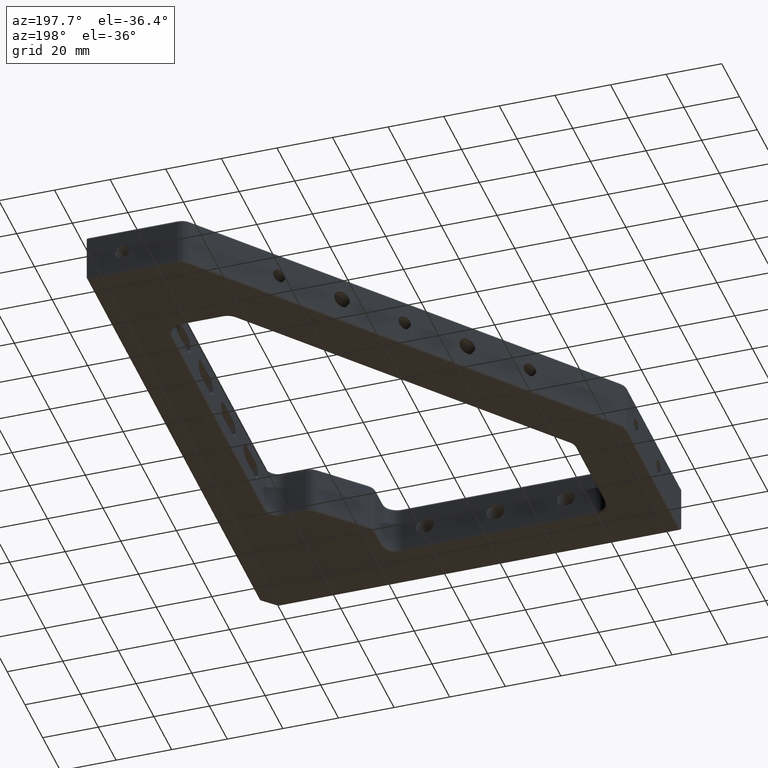
[diagram: clean part render]
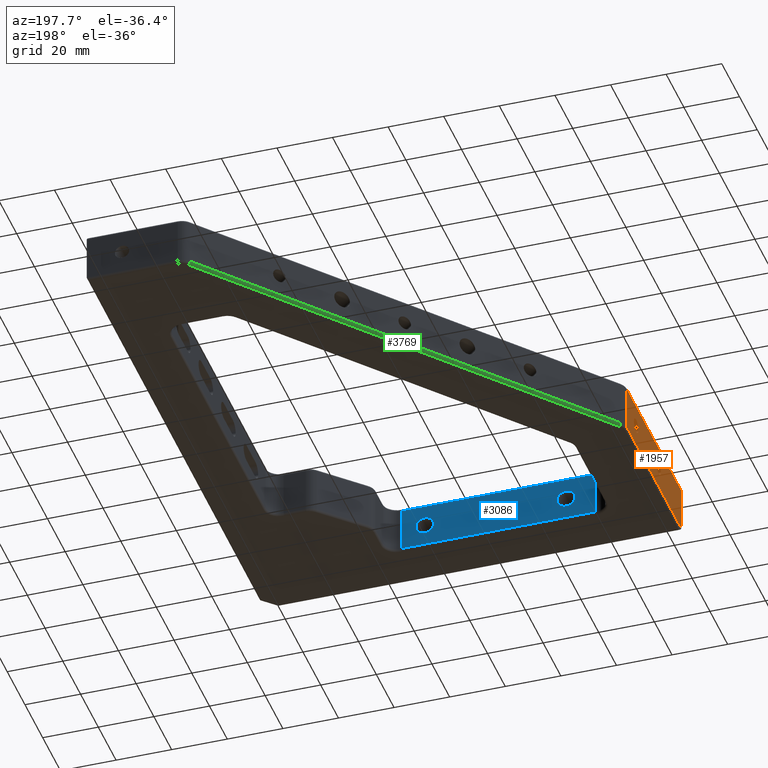
[diagram: same view with three faces highlighted in distinct colors, each labeled with its STEP entity id]
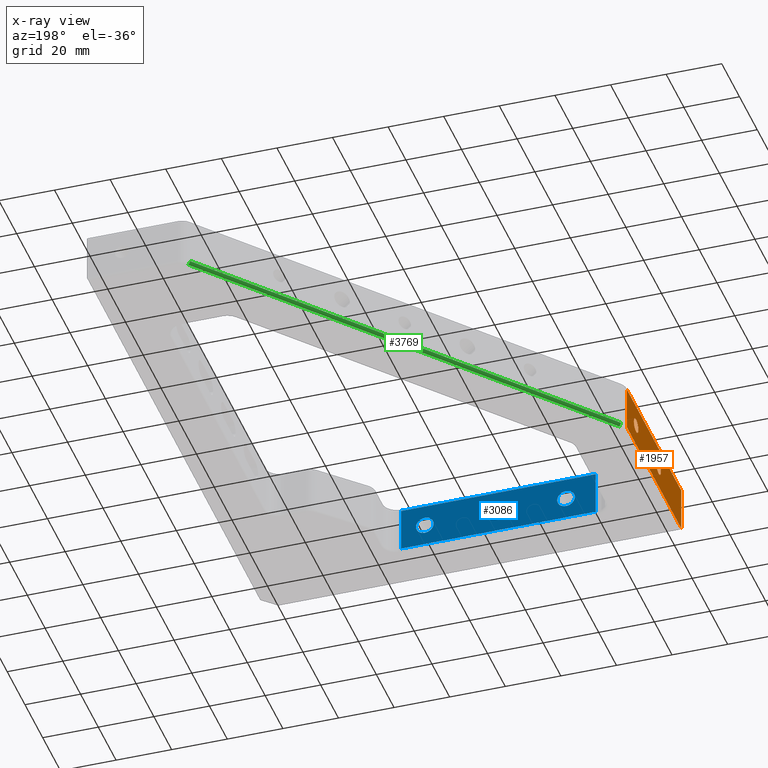
[diagram: x-ray of the same camera — body ghosted, the three highlighted faces saturated]
A machine part, auxiliary view with three faces highlighted in distinct colors.
The next image is the same camera in x-ray (body ghosted, the three faces saturated) — at least one of them is partly hidden behind the body in this view.
Their STEP definitions:

[orange] entity #1957 — the highlighted planar face has unit normal (1, -0, 0).
#19 = DIRECTION ( 'NONE',  ( -1.000000000000000000, -0.0000000000000000000, -0.0000000000000000000 ) ) ;
#36 = VERTEX_POINT ( 'NONE', #3712 ) ;
#68 = CARTESIAN_POINT ( 'NONE',  ( 0.0000000000000000000, 0.0000000000000000000, 16.99999999999999600 ) ) ;
#105 = EDGE_CURVE ( 'NONE', #2258, #559, #4259, .T. ) ;
#144 = DIRECTION ( 'NONE',  ( 3.444736514772037100E-017, 1.000000000000000000, -0.0000000000000000000 ) ) ;
#174 = DIRECTION ( 'NONE',  ( 0.0000000000000000000, 0.0000000000000000000, 1.000000000000000000 ) ) ;
#194 = DIRECTION ( 'NONE',  ( -3.444736514772037100E-017, -1.000000000000000000, 0.0000000000000000000 ) ) ;
#430 = EDGE_CURVE ( 'NONE', #2480, #36, #432, .T. ) ;
#432 = CIRCLE ( 'NONE', #3360, 2.552699999999998000 ) ;
#559 = VERTEX_POINT ( 'NONE', #1795 ) ;
#600 = DIRECTION ( 'NONE',  ( 3.444736514772037100E-017, 1.000000000000000000, 0.0000000000000000000 ) ) ;
#761 = DIRECTION ( 'NONE',  ( 0.0000000000000000000, 0.0000000000000000000, 1.000000000000000000 ) ) ;
#763 = AXIS2_PLACEMENT_3D ( 'NONE', #1886, #4399, #761 ) ;
#822 = ORIENTED_EDGE ( 'NONE', *, *, #1260, .T. ) ;
#939 = EDGE_CURVE ( 'NONE', #4652, #559, #2228, .T. ) ;
#997 = EDGE_CURVE ( 'NONE', #1445, #1238, #3954, .T. ) ;
#1096 = DIRECTION ( 'NONE',  ( 0.0000000000000000000, 0.0000000000000000000, -1.000000000000000000 ) ) ;
#1238 = VERTEX_POINT ( 'NONE', #2544 ) ;
#1253 = FACE_BOUND ( 'NONE', #1624, .T. ) ;
#1260 = EDGE_CURVE ( 'NONE', #1696, #4652, #3058, .T. ) ;
#1348 = EDGE_LOOP ( 'NONE', ( #3322, #2603 ) ) ;
#1445 = VERTEX_POINT ( 'NONE', #1859 ) ;
#1451 = CARTESIAN_POINT ( 'NONE',  ( 2.105715267157662700E-015, 61.12848568033405200, 1.000000000000000900 ) ) ;
#1562 = EDGE_LOOP ( 'NONE', ( #2580, #2794, #822, #1731 ) ) ;
#1613 = VECTOR ( 'NONE', #1614, 1000.000000000000000 ) ;
#1614 = DIRECTION ( 'NONE',  ( -0.0000000000000000000, -0.0000000000000000000, -1.000000000000000000 ) ) ;
#1624 = EDGE_LOOP ( 'NONE', ( #2706, #1778 ) ) ;
#1628 = EDGE_CURVE ( 'NONE', #1238, #1445, #2826, .T. ) ;
#1696 = VERTEX_POINT ( 'NONE', #3673 ) ;
#1731 = ORIENTED_EDGE ( 'NONE', *, *, #939, .T. ) ;
#1756 = DIRECTION ( 'NONE',  ( -1.000000000000000000, -0.0000000000000000000, -0.0000000000000000000 ) ) ;
#1778 = ORIENTED_EDGE ( 'NONE', *, *, #1628, .F. ) ;
#1795 = CARTESIAN_POINT ( 'NONE',  ( 0.0000000000000000000, 0.0000000000000000000, 1.000000000000000900 ) ) ;
#1808 = CARTESIAN_POINT ( 'NONE',  ( 1.756380038135701900E-015, 50.79999999999999700, 8.999999999999998200 ) ) ;
#1810 = LINE ( 'NONE', #2660, #2665 ) ;
#1820 = CARTESIAN_POINT ( 'NONE',  ( 2.105715267157662700E-015, 61.12848568033405200, 18.00000000000000000 ) ) ;
#1828 = EDGE_CURVE ( 'NONE', #2258, #1696, #1810, .T. ) ;
#1859 = CARTESIAN_POINT ( 'NONE',  ( 8.814169633836041700E-016, 25.39999999999999900, 11.55269999999999800 ) ) ;
#1886 = CARTESIAN_POINT ( 'NONE',  ( 8.814169633836041700E-016, 25.39999999999999900, 9.000000000000000000 ) ) ;
#1957 = ADVANCED_FACE ( 'NONE', ( #1253, #2216, #4126 ), #2385, .F. ) ;
#2037 = CARTESIAN_POINT ( 'NONE',  ( 2.168404344971008900E-015, 62.94833685166506900, 18.00000000000000000 ) ) ;
#2216 = FACE_BOUND ( 'NONE', #1348, .T. ) ;
#2228 = LINE ( 'NONE', #4148, #3902 ) ;
#2258 = VERTEX_POINT ( 'NONE', #68 ) ;
#2327 = DIRECTION ( 'NONE',  ( -1.000000000000000000, -0.0000000000000000000, -0.0000000000000000000 ) ) ;
#2383 = AXIS2_PLACEMENT_3D ( 'NONE', #2037, #2752, #600 ) ;
#2385 = PLANE ( 'NONE',  #2383 ) ;
#2480 = VERTEX_POINT ( 'NONE', #3857 ) ;
#2544 = CARTESIAN_POINT ( 'NONE',  ( 8.814169633836041700E-016, 25.39999999999999900, 6.447300000000001100 ) ) ;
#2546 = DIRECTION ( 'NONE',  ( 0.0000000000000000000, 0.0000000000000000000, 1.000000000000000000 ) ) ;
#2580 = ORIENTED_EDGE ( 'NONE', *, *, #105, .F. ) ;
#2603 = ORIENTED_EDGE ( 'NONE', *, *, #2923, .F. ) ;
#2660 = CARTESIAN_POINT ( 'NONE',  ( 2.105715267157662700E-015, 61.12848568033405200, 16.99999999999999600 ) ) ;
#2665 = VECTOR ( 'NONE', #144, 1000.000000000000000 ) ;
#2706 = ORIENTED_EDGE ( 'NONE', *, *, #997, .F. ) ;
#2752 = DIRECTION ( 'NONE',  ( 1.000000000000000000, -3.444736514772037100E-017, 0.0000000000000000000 ) ) ;
#2794 = ORIENTED_EDGE ( 'NONE', *, *, #1828, .T. ) ;
#2826 = CIRCLE ( 'NONE', #763, 2.552699999999998000 ) ;
#2923 = EDGE_CURVE ( 'NONE', #36, #2480, #3029, .T. ) ;
#3029 = CIRCLE ( 'NONE', #4637, 2.552699999999998000 ) ;
#3049 = AXIS2_PLACEMENT_3D ( 'NONE', #4470, #2327, #174 ) ;
#3058 = LINE ( 'NONE', #1820, #3786 ) ;
#3322 = ORIENTED_EDGE ( 'NONE', *, *, #430, .F. ) ;
#3360 = AXIS2_PLACEMENT_3D ( 'NONE', #1808, #19, #2546 ) ;
#3673 = CARTESIAN_POINT ( 'NONE',  ( 2.105715267157662700E-015, 61.12848568033405200, 16.99999999999999600 ) ) ;
#3712 = CARTESIAN_POINT ( 'NONE',  ( 1.756380038135701900E-015, 50.79999999999999700, 6.447299999999999400 ) ) ;
#3768 = CARTESIAN_POINT ( 'NONE',  ( 0.0000000000000000000, 0.0000000000000000000, 18.00000000000000000 ) ) ;
#3786 = VECTOR ( 'NONE', #1096, 1000.000000000000000 ) ;
#3857 = CARTESIAN_POINT ( 'NONE',  ( 1.756380038135701900E-015, 50.79999999999999700, 11.55269999999999600 ) ) ;
#3902 = VECTOR ( 'NONE', #194, 1000.000000000000000 ) ;
#3906 = CARTESIAN_POINT ( 'NONE',  ( 1.756380038135701900E-015, 50.79999999999999700, 8.999999999999998200 ) ) ;
#3954 = CIRCLE ( 'NONE', #3049, 2.552699999999998000 ) ;
#4126 = FACE_OUTER_BOUND ( 'NONE', #1562, .T. ) ;
#4148 = CARTESIAN_POINT ( 'NONE',  ( 2.168404344971008900E-015, 62.94833685166506900, 1.000000000000000900 ) ) ;
#4259 = LINE ( 'NONE', #3768, #1613 ) ;
#4282 = DIRECTION ( 'NONE',  ( 0.0000000000000000000, 0.0000000000000000000, 1.000000000000000000 ) ) ;
#4399 = DIRECTION ( 'NONE',  ( -1.000000000000000000, -0.0000000000000000000, -0.0000000000000000000 ) ) ;
#4470 = CARTESIAN_POINT ( 'NONE',  ( 8.814169633836041700E-016, 25.39999999999999900, 9.000000000000000000 ) ) ;
#4637 = AXIS2_PLACEMENT_3D ( 'NONE', #3906, #1756, #4282 ) ;
#4652 = VERTEX_POINT ( 'NONE', #1451 ) ;

[blue] entity #3086 — the highlighted planar face has unit normal (0, -1, 0).
#40 = ORIENTED_EDGE ( 'NONE', *, *, #4372, .T. ) ;
#44 = VERTEX_POINT ( 'NONE', #2659 ) ;
#58 = CARTESIAN_POINT ( 'NONE',  ( 35.69999999999999600, 18.00000000000000700, 9.000000000000000000 ) ) ;
#88 = VECTOR ( 'NONE', #1627, 1000.000000000000000 ) ;
#154 = CARTESIAN_POINT ( 'NONE',  ( 99.99999999999998600, 18.00000000000001100, 1.000000000000000000 ) ) ;
#197 = CIRCLE ( 'NONE', #2614, 3.174999999999997200 ) ;
#232 = VERTEX_POINT ( 'NONE', #4244 ) ;
#254 = CARTESIAN_POINT ( 'NONE',  ( 24.99999999999999300, 18.00000000000000400, 16.99999999999999600 ) ) ;
#284 = DIRECTION ( 'NONE',  ( -0.0000000000000000000, 1.000000000000000000, -0.0000000000000000000 ) ) ;
#285 = DIRECTION ( 'NONE',  ( 0.0000000000000000000, 0.0000000000000000000, 1.000000000000000000 ) ) ;
#290 = EDGE_CURVE ( 'NONE', #4433, #232, #4585, .T. ) ;
#390 = EDGE_CURVE ( 'NONE', #44, #2696, #3407, .T. ) ;
#417 = DIRECTION ( 'NONE',  ( 0.0000000000000000000, 0.0000000000000000000, 1.000000000000000000 ) ) ;
#444 = CIRCLE ( 'NONE', #3340, 3.174999999999997200 ) ;
#468 = CARTESIAN_POINT ( 'NONE',  ( 86.50000000000000000, 18.00000000000001400, 5.825000000000002000 ) ) ;
#507 = VERTEX_POINT ( 'NONE', #2929 ) ;
#547 = VERTEX_POINT ( 'NONE', #3950 ) ;
#612 = AXIS2_PLACEMENT_3D ( 'NONE', #865, #4469, #2324 ) ;
#749 = VECTOR ( 'NONE', #1934, 1000.000000000000000 ) ;
#796 = ORIENTED_EDGE ( 'NONE', *, *, #1080, .T. ) ;
#820 = AXIS2_PLACEMENT_3D ( 'NONE', #3691, #1546, #4070 ) ;
#831 = CIRCLE ( 'NONE', #4465, 3.175000000000004300 ) ;
#856 = DIRECTION ( 'NONE',  ( -0.0000000000000000000, 1.000000000000000000, -0.0000000000000000000 ) ) ;
#865 = CARTESIAN_POINT ( 'NONE',  ( 99.99999999999998600, 18.00000000000001100, -2.000000000000001800 ) ) ;
#870 = VECTOR ( 'NONE', #285, 1000.000000000000000 ) ;
#951 = EDGE_LOOP ( 'NONE', ( #796, #1407, #40, #1221 ) ) ;
#960 = EDGE_LOOP ( 'NONE', ( #4502, #3875 ) ) ;
#1080 = EDGE_CURVE ( 'NONE', #3439, #4433, #3843, .T. ) ;
#1128 = ORIENTED_EDGE ( 'NONE', *, *, #3054, .F. ) ;
#1173 = DIRECTION ( 'NONE',  ( -0.0000000000000000000, 1.000000000000000000, -0.0000000000000000000 ) ) ;
#1221 = ORIENTED_EDGE ( 'NONE', *, *, #4288, .T. ) ;
#1239 = AXIS2_PLACEMENT_3D ( 'NONE', #58, #2577, #417 ) ;
#1405 = CARTESIAN_POINT ( 'NONE',  ( 61.09999999999999400, 18.00000000000001100, 9.000000000000000000 ) ) ;
#1407 = ORIENTED_EDGE ( 'NONE', *, *, #290, .T. ) ;
#1420 = DIRECTION ( 'NONE',  ( -0.0000000000000000000, 1.000000000000000000, -0.0000000000000000000 ) ) ;
#1546 = DIRECTION ( 'NONE',  ( -0.0000000000000000000, 1.000000000000000000, -0.0000000000000000000 ) ) ;
#1566 = CARTESIAN_POINT ( 'NONE',  ( 86.50000000000000000, 18.00000000000001400, 9.000000000000000000 ) ) ;
#1571 = EDGE_LOOP ( 'NONE', ( #2128, #2705 ) ) ;
#1627 = DIRECTION ( 'NONE',  ( -0.0000000000000000000, -0.0000000000000000000, -1.000000000000000000 ) ) ;
#1675 = FACE_OUTER_BOUND ( 'NONE', #951, .T. ) ;
#1712 = LINE ( 'NONE', #154, #749 ) ;
#1719 = VECTOR ( 'NONE', #2049, 1000.000000000000000 ) ;
#1777 = FACE_BOUND ( 'NONE', #3080, .T. ) ;
#1920 = AXIS2_PLACEMENT_3D ( 'NONE', #1405, #1420, #3933 ) ;
#1923 = CARTESIAN_POINT ( 'NONE',  ( 94.99999999999998600, 18.00000000000001100, 1.000000000000000000 ) ) ;
#1934 = DIRECTION ( 'NONE',  ( -1.000000000000000000, -8.673617379884035500E-017, -0.0000000000000000000 ) ) ;
#1989 = EDGE_CURVE ( 'NONE', #4219, #507, #197, .T. ) ;
#2049 = DIRECTION ( 'NONE',  ( 1.000000000000000000, 8.673617379884035500E-017, -0.0000000000000000000 ) ) ;
#2128 = ORIENTED_EDGE ( 'NONE', *, *, #3385, .F. ) ;
#2324 = DIRECTION ( 'NONE',  ( 1.000000000000000000, 8.673617379884035500E-017, 0.0000000000000000000 ) ) ;
#2420 = CARTESIAN_POINT ( 'NONE',  ( 94.99999999999998600, 18.00000000000001100, 16.99999999999999600 ) ) ;
#2439 = CARTESIAN_POINT ( 'NONE',  ( 24.99999999999999300, 18.00000000000000400, 18.00000000000000000 ) ) ;
#2577 = DIRECTION ( 'NONE',  ( -0.0000000000000000000, 1.000000000000000000, -0.0000000000000000000 ) ) ;
#2614 = AXIS2_PLACEMENT_3D ( 'NONE', #1566, #284, #2782 ) ;
#2640 = FACE_BOUND ( 'NONE', #960, .T. ) ;
#2659 = CARTESIAN_POINT ( 'NONE',  ( 61.09999999999999400, 18.00000000000001100, 5.824999999999994800 ) ) ;
#2696 = VERTEX_POINT ( 'NONE', #3415 ) ;
#2705 = ORIENTED_EDGE ( 'NONE', *, *, #390, .F. ) ;
#2771 = CARTESIAN_POINT ( 'NONE',  ( 35.69999999999999600, 18.00000000000000700, 5.825000000000002000 ) ) ;
#2782 = DIRECTION ( 'NONE',  ( 0.0000000000000000000, 0.0000000000000000000, 1.000000000000000000 ) ) ;
#2884 = CIRCLE ( 'NONE', #820, 3.174999999999997200 ) ;
#2929 = CARTESIAN_POINT ( 'NONE',  ( 86.50000000000000000, 18.00000000000001400, 12.17499999999999700 ) ) ;
#2975 = ORIENTED_EDGE ( 'NONE', *, *, #3778, .F. ) ;
#3002 = CARTESIAN_POINT ( 'NONE',  ( 35.69999999999999600, 18.00000000000000700, 9.000000000000000000 ) ) ;
#3054 = EDGE_CURVE ( 'NONE', #547, #4452, #444, .T. ) ;
#3080 = EDGE_LOOP ( 'NONE', ( #1128, #2975 ) ) ;
#3086 = ADVANCED_FACE ( 'NONE', ( #2640, #4544, #1777, #1675 ), #4111, .F. ) ;
#3326 = CARTESIAN_POINT ( 'NONE',  ( 61.09999999999999400, 18.00000000000001100, 9.000000000000000000 ) ) ;
#3340 = AXIS2_PLACEMENT_3D ( 'NONE', #3002, #856, #3359 ) ;
#3347 = CIRCLE ( 'NONE', #1239, 3.174999999999997200 ) ;
#3351 = CARTESIAN_POINT ( 'NONE',  ( 24.99999999999999300, 18.00000000000000400, 1.000000000000000900 ) ) ;
#3359 = DIRECTION ( 'NONE',  ( 0.0000000000000000000, 0.0000000000000000000, 1.000000000000000000 ) ) ;
#3385 = EDGE_CURVE ( 'NONE', #2696, #44, #831, .T. ) ;
#3407 = CIRCLE ( 'NONE', #1920, 3.175000000000004300 ) ;
#3415 = CARTESIAN_POINT ( 'NONE',  ( 61.09999999999999400, 18.00000000000001100, 12.17500000000000400 ) ) ;
#3438 = CARTESIAN_POINT ( 'NONE',  ( 94.99999999999998600, 18.00000000000001100, 0.0000000000000000000 ) ) ;
#3439 = VERTEX_POINT ( 'NONE', #3351 ) ;
#3681 = DIRECTION ( 'NONE',  ( 0.0000000000000000000, 0.0000000000000000000, 1.000000000000000000 ) ) ;
#3691 = CARTESIAN_POINT ( 'NONE',  ( 86.50000000000000000, 18.00000000000001400, 9.000000000000000000 ) ) ;
#3778 = EDGE_CURVE ( 'NONE', #4452, #547, #3347, .T. ) ;
#3843 = LINE ( 'NONE', #2439, #870 ) ;
#3875 = ORIENTED_EDGE ( 'NONE', *, *, #1989, .F. ) ;
#3911 = VERTEX_POINT ( 'NONE', #1923 ) ;
#3933 = DIRECTION ( 'NONE',  ( 0.0000000000000000000, 0.0000000000000000000, 1.000000000000000000 ) ) ;
#3950 = CARTESIAN_POINT ( 'NONE',  ( 35.69999999999999600, 18.00000000000000700, 12.17499999999999700 ) ) ;
#4023 = LINE ( 'NONE', #3438, #88 ) ;
#4070 = DIRECTION ( 'NONE',  ( 0.0000000000000000000, 0.0000000000000000000, 1.000000000000000000 ) ) ;
#4111 = PLANE ( 'NONE',  #612 ) ;
#4210 = EDGE_CURVE ( 'NONE', #507, #4219, #2884, .T. ) ;
#4219 = VERTEX_POINT ( 'NONE', #468 ) ;
#4244 = CARTESIAN_POINT ( 'NONE',  ( 94.99999999999998600, 18.00000000000001100, 16.99999999999999600 ) ) ;
#4288 = EDGE_CURVE ( 'NONE', #3911, #3439, #1712, .T. ) ;
#4372 = EDGE_CURVE ( 'NONE', #232, #3911, #4023, .T. ) ;
#4433 = VERTEX_POINT ( 'NONE', #254 ) ;
#4452 = VERTEX_POINT ( 'NONE', #2771 ) ;
#4465 = AXIS2_PLACEMENT_3D ( 'NONE', #3326, #1173, #3681 ) ;
#4469 = DIRECTION ( 'NONE',  ( 8.673617379884035500E-017, -1.000000000000000000, 0.0000000000000000000 ) ) ;
#4502 = ORIENTED_EDGE ( 'NONE', *, *, #4210, .F. ) ;
#4544 = FACE_BOUND ( 'NONE', #1571, .T. ) ;
#4585 = LINE ( 'NONE', #2420, #1719 ) ;

[green] entity #3769 — the highlighted cylindrical surface (edge-blend (fillet) strip) has radius 1 mm, axis along (-0.6428, -0.766, 0).
#395 = ORIENTED_EDGE ( 'NONE', *, *, #1018, .F. ) ;
#434 = ORIENTED_EDGE ( 'NONE', *, *, #975, .F. ) ;
#524 = CARTESIAN_POINT ( 'NONE',  ( 114.9999999999999900, 200.0000000000000000, 1.000000000000000900 ) ) ;
#719 = CARTESIAN_POINT ( 'NONE',  ( 1.169777784405093200, 64.34242372876671800, 1.000000000000000900 ) ) ;
#887 = DIRECTION ( 'NONE',  ( -0.6427876096865370300, -0.7660444431189799000, 0.0000000000000000000 ) ) ;
#949 = CARTESIAN_POINT ( 'NONE',  ( 1.935822227524073100, 63.69963611908018200, 0.9999999999999974500 ) ) ;
#953 = VERTEX_POINT ( 'NONE', #1647 ) ;
#975 = EDGE_CURVE ( 'NONE', #1885, #3543, #4418, .T. ) ;
#1018 = EDGE_CURVE ( 'NONE', #953, #2147, #1205, .T. ) ;
#1089 = VECTOR ( 'NONE', #887, 1000.000000000000000 ) ;
#1125 = CARTESIAN_POINT ( 'NONE',  ( 115.7660444431189700, 199.3572123903134900, 1.000000000000000900 ) ) ;
#1205 = LINE ( 'NONE', #524, #1089 ) ;
#1246 = DIRECTION ( 'NONE',  ( -0.6427876096865327000, -0.7660444431189835600, -0.0000000000000000000 ) ) ;
#1306 = DIRECTION ( 'NONE',  ( 0.7660444431189756800, -0.6427876096865421400, 0.0000000000000000000 ) ) ;
#1313 = CARTESIAN_POINT ( 'NONE',  ( -30.22996064225292700, 25.36594882541796600, 0.0000000000000000000 ) ) ;
#1647 = CARTESIAN_POINT ( 'NONE',  ( 113.5013160751800900, 198.2139380484326800, 1.000000000000000900 ) ) ;
#1885 = VERTEX_POINT ( 'NONE', #2347 ) ;
#1972 = ORIENTED_EDGE ( 'NONE', *, *, #3242, .F. ) ;
#2057 = AXIS2_PLACEMENT_3D ( 'NONE', #949, #3455, #1306 ) ;
#2147 = VERTEX_POINT ( 'NONE', #719 ) ;
#2175 = CYLINDRICAL_SURFACE ( 'NONE', #2208, 0.9999999999999945600 ) ;
#2208 = AXIS2_PLACEMENT_3D ( 'NONE', #1125, #3268, #2905 ) ;
#2309 = ORIENTED_EDGE ( 'NONE', *, *, #3101, .T. ) ;
#2347 = CARTESIAN_POINT ( 'NONE',  ( 1.935822227524068600, 63.69963611908018200, 0.0000000000000000000 ) ) ;
#2505 = VECTOR ( 'NONE', #3830, 1000.000000000000000 ) ;
#2905 = DIRECTION ( 'NONE',  ( 0.7660444431189836800, -0.6427876096865327000, 0.0000000000000000000 ) ) ;
#3025 = CIRCLE ( 'NONE', #2057, 1.000000000000001600 ) ;
#3101 = EDGE_CURVE ( 'NONE', #953, #3543, #4438, .T. ) ;
#3125 = FACE_OUTER_BOUND ( 'NONE', #3378, .T. ) ;
#3242 = EDGE_CURVE ( 'NONE', #2147, #1885, #3025, .T. ) ;
#3268 = DIRECTION ( 'NONE',  ( -0.6427876096865371400, -0.7660444431189800100, 0.0000000000000000000 ) ) ;
#3378 = EDGE_LOOP ( 'NONE', ( #2309, #434, #1972, #395 ) ) ;
#3393 = CARTESIAN_POINT ( 'NONE',  ( 114.2673605182990600, 197.5711504387461400, 1.000000000000000900 ) ) ;
#3455 = DIRECTION ( 'NONE',  ( -0.6427876096865405800, -0.7660444431189769000, 3.028467535270127000E-015 ) ) ;
#3543 = VERTEX_POINT ( 'NONE', #4144 ) ;
#3751 = DIRECTION ( 'NONE',  ( 0.7660444431189836800, -0.6427876096865327000, 0.0000000000000000000 ) ) ;
#3769 = ADVANCED_FACE ( 'NONE', ( #3125 ), #2175, .T. ) ;
#3830 = DIRECTION ( 'NONE',  ( 0.6427876096865370300, 0.7660444431189799000, -0.0000000000000000000 ) ) ;
#4144 = CARTESIAN_POINT ( 'NONE',  ( 114.2673605182990600, 197.5711504387461400, 0.0000000000000000000 ) ) ;
#4418 = LINE ( 'NONE', #1313, #2505 ) ;
#4438 = CIRCLE ( 'NONE', #4552, 0.9999999999999945600 ) ;
#4552 = AXIS2_PLACEMENT_3D ( 'NONE', #3393, #1246, #3751 ) ;